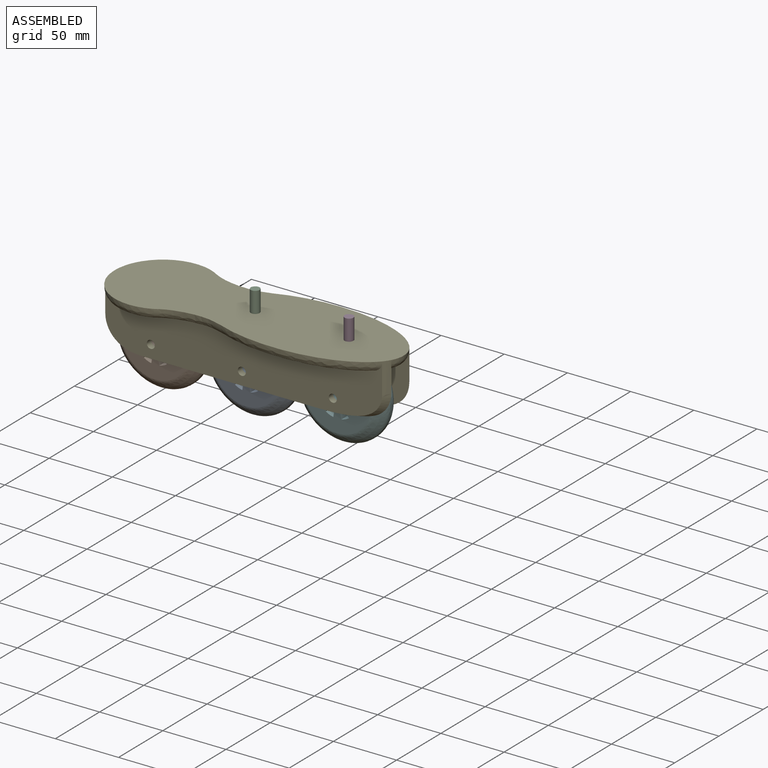
[diagram: assembled view]
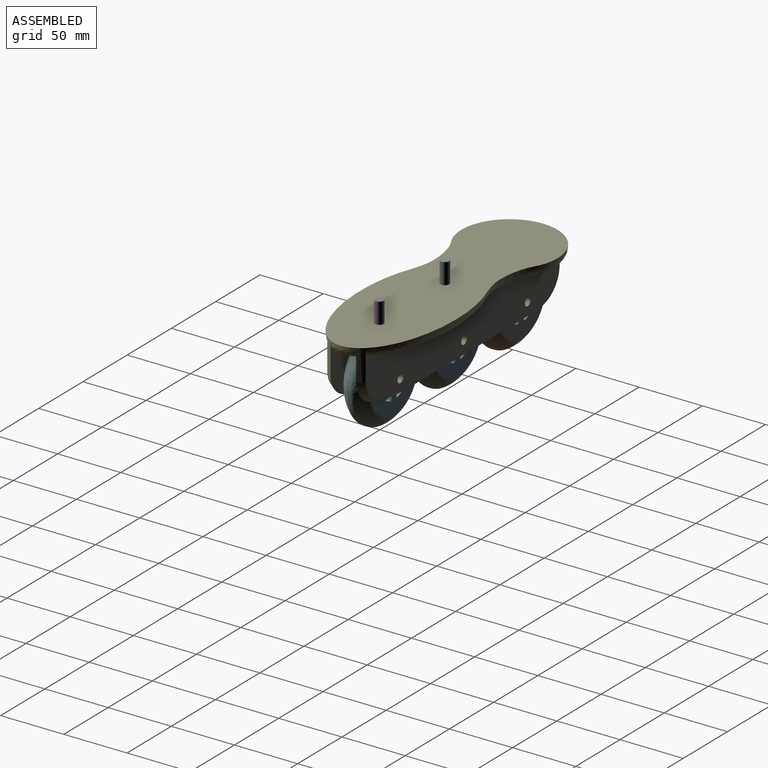
[diagram: assembled view, second angle]
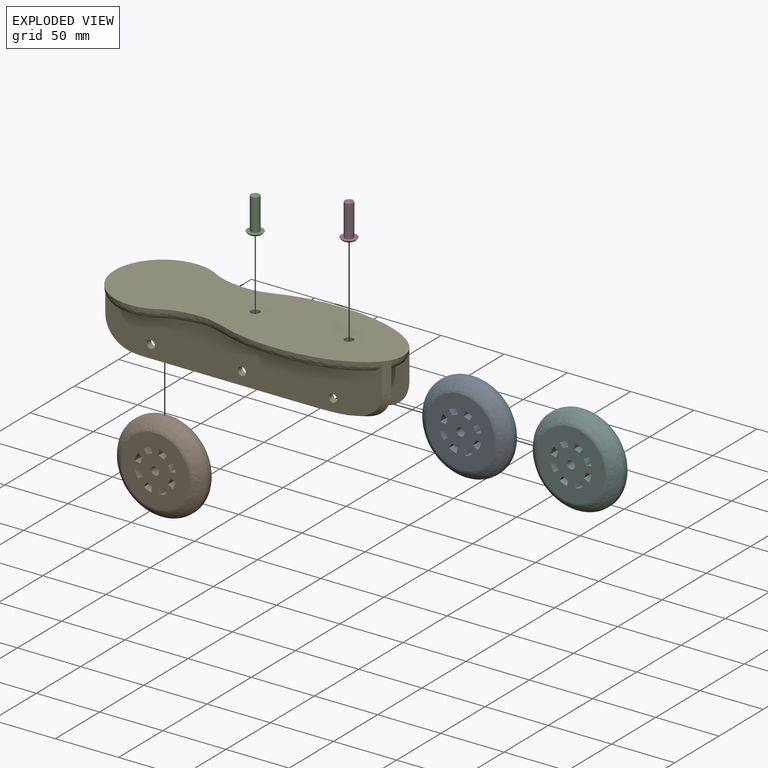
[diagram: exploded view]
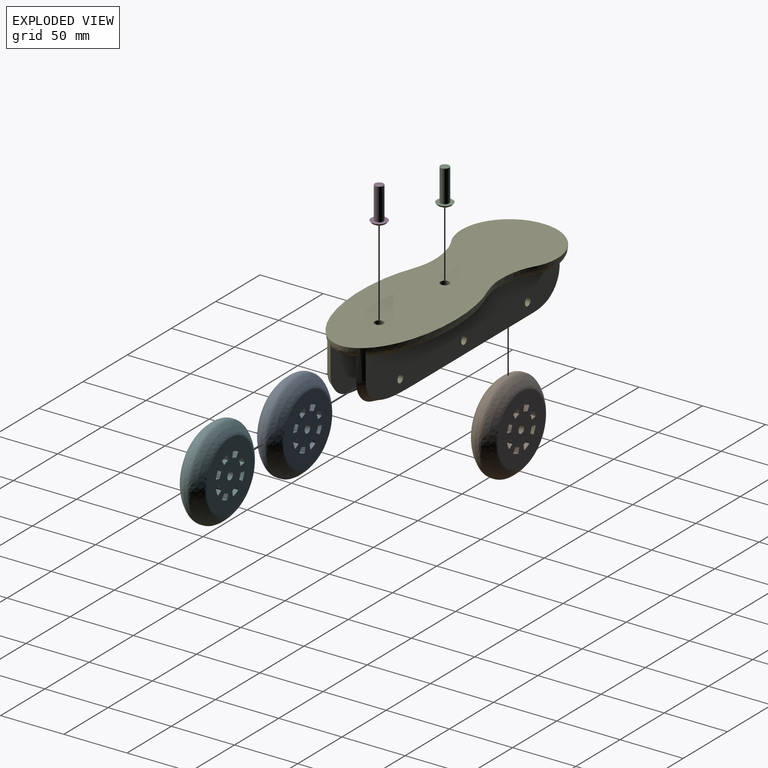
[diagram: exploded view, second angle]
ASSEMBLY  parts=6 mates=3
PART A: 38 faces, bbox 72x20.3x72 mm
  f0: cylinder r=3.17mm len=20.32mm, axis (0,1,0), area 405.4mm2, adj f1,f2
  f1: plane 54.25x54.25mm, normal (0,-1,0), area 2078mm2, adj f0,f3,f4,f5,f6,f7,f8,f9
  f2: plane 54.25x54.25mm, normal (0,1,0), area 2078mm2, adj f0,f3,f4,f5,f6,f7,f8,f9
  f3: plane 20.32x3.7mm, normal (-0.83,0,0.56), area 90.3mm2, adj f1,f2,f4,f27
  f4: cylinder r=12.06mm len=20.32mm, axis (0,1,0), area 96.3mm2, adj f1,f2,f3,f5
  f5: plane 20.32x4.36mm, normal (0.98,0,-0.2), area 90.3mm2, adj f1,f2,f4,f27
  f6: plane 20.32x4.36mm, normal (-0.2,0,0.98), area 90.3mm2, adj f1,f2,f7,f28
  f7: cylinder r=12.06mm len=20.32mm, axis (0,1,0), area 96.3mm2, adj f1,f2,f6,f8
  f8: plane 20.32x3.7mm, normal (0.56,0,-0.83), area 90.3mm2, adj f1,f2,f7,f28
  f9: plane 20.32x3.7mm, normal (0.56,0,0.83), area 90.3mm2, adj f1,f2,f10,f29
  f10: cylinder r=12.06mm len=20.32mm, axis (0,1,0), area 96.3mm2, adj f1,f2,f9,f11
  f11: plane 20.32x4.36mm, normal (-0.2,0,-0.98), area 90.3mm2, adj f1,f2,f10,f29
  f12: plane 20.32x4.36mm, normal (0.98,0,0.2), area 90.3mm2, adj f1,f2,f13,f30
  f13: cylinder r=12.06mm len=20.32mm, axis (0,1,0), area 96.3mm2, adj f1,f2,f12,f14
  f14: plane 20.32x3.7mm, normal (-0.83,0,-0.56), area 90.3mm2, adj f1,f2,f13,f30
  f15: plane 20.32x3.7mm, normal (0.83,0,-0.56), area 90.3mm2, adj f1,f2,f16,f31
  f16: cylinder r=12.06mm len=20.32mm, axis (0,1,0), area 96.3mm2, adj f1,f2,f15,f17
  f17: plane 20.32x4.36mm, normal (-0.98,0,0.2), area 90.3mm2, adj f1,f2,f16,f31
  f18: plane 20.32x4.36mm, normal (0.2,0,-0.98), area 90.3mm2, adj f1,f2,f19,f32
  f19: cylinder r=12.06mm len=20.32mm, axis (0,1,0), area 96.3mm2, adj f1,f2,f18,f20
  f20: plane 20.32x3.7mm, normal (-0.56,0,0.83), area 90.3mm2, adj f1,f2,f19,f32
  f21: plane 20.32x3.7mm, normal (-0.56,0,-0.83), area 90.3mm2, adj f1,f2,f22,f33
  f22: cylinder r=12.06mm len=20.32mm, axis (0,1,0), area 96.3mm2, adj f1,f2,f21,f23
  f23: plane 20.32x4.36mm, normal (0.2,0,0.98), area 90.3mm2, adj f1,f2,f22,f33
  f24: plane 20.32x4.36mm, normal (-0.98,0,-0.2), area 90.3mm2, adj f1,f2,f25,f34
  f25: cylinder r=12.06mm len=20.32mm, axis (0,1,0), area 96.3mm2, adj f1,f2,f24,f26
  f26: plane 20.32x3.7mm, normal (0.83,0,0.56), area 90.3mm2, adj f1,f2,f25,f34
  f27: cylinder r=16.51mm len=20.32mm, axis (0,1,0), area 131.7mm2, adj f1,f2,f3,f5
  f28: cylinder r=16.51mm len=20.32mm, axis (0,1,0), area 131.7mm2, adj f1,f2,f6,f8
  f29: cylinder r=16.51mm len=20.32mm, axis (0,1,0), area 131.7mm2, adj f1,f2,f9,f11
  f30: cylinder r=16.51mm len=20.32mm, axis (0,1,0), area 131.7mm2, adj f1,f2,f12,f14
  f31: cylinder r=16.51mm len=20.32mm, axis (0,1,0), area 131.7mm2, adj f1,f2,f15,f17
  f32: cylinder r=16.51mm len=20.32mm, axis (0,1,0), area 131.7mm2, adj f1,f2,f18,f20
  f33: cylinder r=16.51mm len=20.32mm, axis (0,1,0), area 131.7mm2, adj f1,f2,f21,f23
  f34: cylinder r=16.51mm len=20.32mm, axis (0,1,0), area 131.7mm2, adj f1,f2,f24,f26
  f35: cylinder r=36mm len=72mm, axis (0,1,0), area 574.5mm2, adj f36,f37
  f36: bspline ~72x72mm, area 2633mm2, adj f2,f35
  f37: bspline ~72x72mm, area 2633mm2, adj f1,f35
PART B: same geometry as A
PART C: 5 faces, bbox 12.7x12.7x27.9 mm
  f0: plane 3.9x3.9mm, normal (0,0,-1), area 12mm2, adj f4
  f1: plane 12.7x12.7mm, normal (0,0,1), area 88.4mm2, adj f2,f4
  f2: cylinder r=3.49mm len=25.4mm, axis (0,0,-1), area 557.4mm2, adj f1,f3
  f3: plane 6.99x6.99mm, normal (0,0,1), area 38.3mm2, adj f2
  f4: torus R=1.95mm, axis (0,0,1), area 146.3mm2, adj f0,f1
PART D: 5 faces, bbox 12.7x12.7x27.9 mm
  f0: cylinder r=3.49mm len=25.4mm, axis (0,0,-1), area 557.4mm2, adj f1,f3
  f1: plane 6.99x6.99mm, normal (0,0,1), area 38.3mm2, adj f0
  f2: plane 3.9x3.9mm, normal (0,0,-1), area 12mm2, adj f4
  f3: plane 12.7x12.7mm, normal (0,0,1), area 88.4mm2, adj f0,f4
  f4: torus R=1.95mm, axis (0,0,1), area 146.3mm2, adj f2,f3
PART E: 38 faces, bbox 234.3x82.1x52.7 mm
  f0: cylinder r=38.1mm len=24.13mm, axis (0,0,1), area 130.2mm2, adj f9,f10,f11,f24
  f1: extruded ~24.13x5.08mm, area 150.6mm2, adj f9,f13,f14,f22
  f2: plane 196.23x14.9mm, normal (0,0,-1), area 1717.9mm2, adj f13,f26,f27,f28,f29,f30
  f3: plane 211.09x20.58mm, normal (0,0,-1), area 4154.6mm2, adj f5,f6,f11,f14,f31,f37
  f4: extruded ~24.13x5.08mm, area 150.6mm2, adj f9,f10,f11,f25
  f5: cylinder r=3.49mm len=8.89mm, axis (0,0,1), area 195.1mm2, adj f3,f9
  f6: cylinder r=3.49mm len=8.89mm, axis (0,0,1), area 195.1mm2, adj f3,f9
  f7: cylinder r=38.1mm len=24.13mm, axis (0,0,1), area 130.2mm2, adj f9,f13,f14,f23
  f8: plane 196.23x14.9mm, normal (0,0,-1), area 1717.9mm2, adj f10,f32,f33,f34,f35,f36
  f9: plane 229.47x77.22mm, normal (0,0,1), area 14185.1mm2, adj f0,f1,f4,f5,f6,f7,f26,f27
  f10: plane 224.7x52.64mm, normal (0,-1,0), area 7975.3mm2, adj f0,f4,f8,f12,f19,f20,f21,f24
  f11: plane 228.76x51.29mm, normal (0,1,0), area 8224mm2, adj f0,f3,f4,f12,f19,f20,f21,f24
  f12: plane 160.26x5.09mm, normal (0,0,-1), area 740.1mm2, adj f10,f11,f24,f25
  f13: plane 224.72x52.65mm, normal (0,1,0), area 7975.3mm2, adj f1,f2,f7,f15,f16,f17,f18,f22
  f14: plane 228.79x51.32mm, normal (0,-1,0), area 8223.9mm2, adj f1,f3,f7,f15,f16,f17,f18,f22
  f15: plane 160.26x5.09mm, normal (0,0,-1), area 740.1mm2, adj f13,f14,f22,f23
  f16: cylinder r=3.17mm len=6.35mm, axis (0,-1,0), area 101.3mm2, adj f13,f14
  f17: cylinder r=3.17mm len=6.35mm, axis (0,-1,0), area 101.3mm2, adj f13,f14
  f18: cylinder r=3.17mm len=6.35mm, axis (0,-1,0), area 101.3mm2, adj f13,f14
  f19: cylinder r=3.17mm len=6.35mm, axis (0,-1,0), area 101.3mm2, adj f10,f11
  f20: cylinder r=3.17mm len=6.35mm, axis (0,-1,0), area 101.3mm2, adj f10,f11
  f21: cylinder r=3.17mm len=6.35mm, axis (0,-1,0), area 101.3mm2, adj f10,f11
  f22: bspline ~79.05x39.1mm, area 333.4mm2, adj f1,f13,f14,f15
  f23: torus R=15.24mm, axis (0,0,-1), area 213.8mm2, adj f7,f13,f14,f15
  f24: torus R=15.24mm, axis (0,0,-1), area 213.8mm2, adj f0,f10,f11,f12
  f25: bspline ~79.05x39.1mm, area 333.4mm2, adj f4,f10,f11,f12
  f26: bspline ~55.62x28.75mm, area 783mm2, adj f2,f9,f13,f27
  f27: bspline ~9.17x8.89mm, area 38.4mm2, adj f2,f9,f26,f28
  f28: bspline ~46.73x15.55mm, area 626.5mm2, adj f2,f9,f27,f29
  f29: bspline ~10.8x10.34mm, area 113.1mm2, adj f2,f9,f28,f30
  f30: bspline ~126.8x31.31mm, area 1669.6mm2, adj f2,f9,f13,f29
  f31: bspline ~26.5x10.7mm, area 314.3mm2, adj f3,f9,f11,f14
  f32: bspline ~118.22x28.71mm, area 1669.7mm2, adj f8,f9,f10,f33
  f33: bspline ~10.76x10.21mm, area 113.1mm2, adj f8,f9,f32,f34
  f34: bspline ~46.73x15.55mm, area 626.5mm2, adj f8,f9,f33,f35
  f35: bspline ~9.1x8.89mm, area 38.4mm2, adj f8,f9,f34,f36
  f36: bspline ~55.62x28.75mm, area 783mm2, adj f8,f9,f10,f35
  f37: bspline ~34.66x14.56mm, area 357.8mm2, adj f3,f9,f11,f14
PART F: same geometry as A
PLACE A t=(109.53,-26.37,-94.76)mm
PLACE B t=(37.53,-26.37,-94.76)mm
PLACE C t=(5.62,-83.18,-32.47)mm
PLACE D t=(5.62,-83.18,-32.47)mm
PLACE E t=(5.62,-83.18,-32.47)mm
PLACE F t=(181.53,-26.37,-94.76)mm
MATE fastened E.f18 <-> B.f0  axis (0,1,0) through (16.74,-46.69,-69.3)mm
MATE fastened D.f0 <-> E.f5  axis (0,0,1) through (162.86,-36.53,-41.36)mm
MATE fastened C.f2 <-> E.f6  axis (0,0,1) through (88.66,-36.53,-41.36)mm
